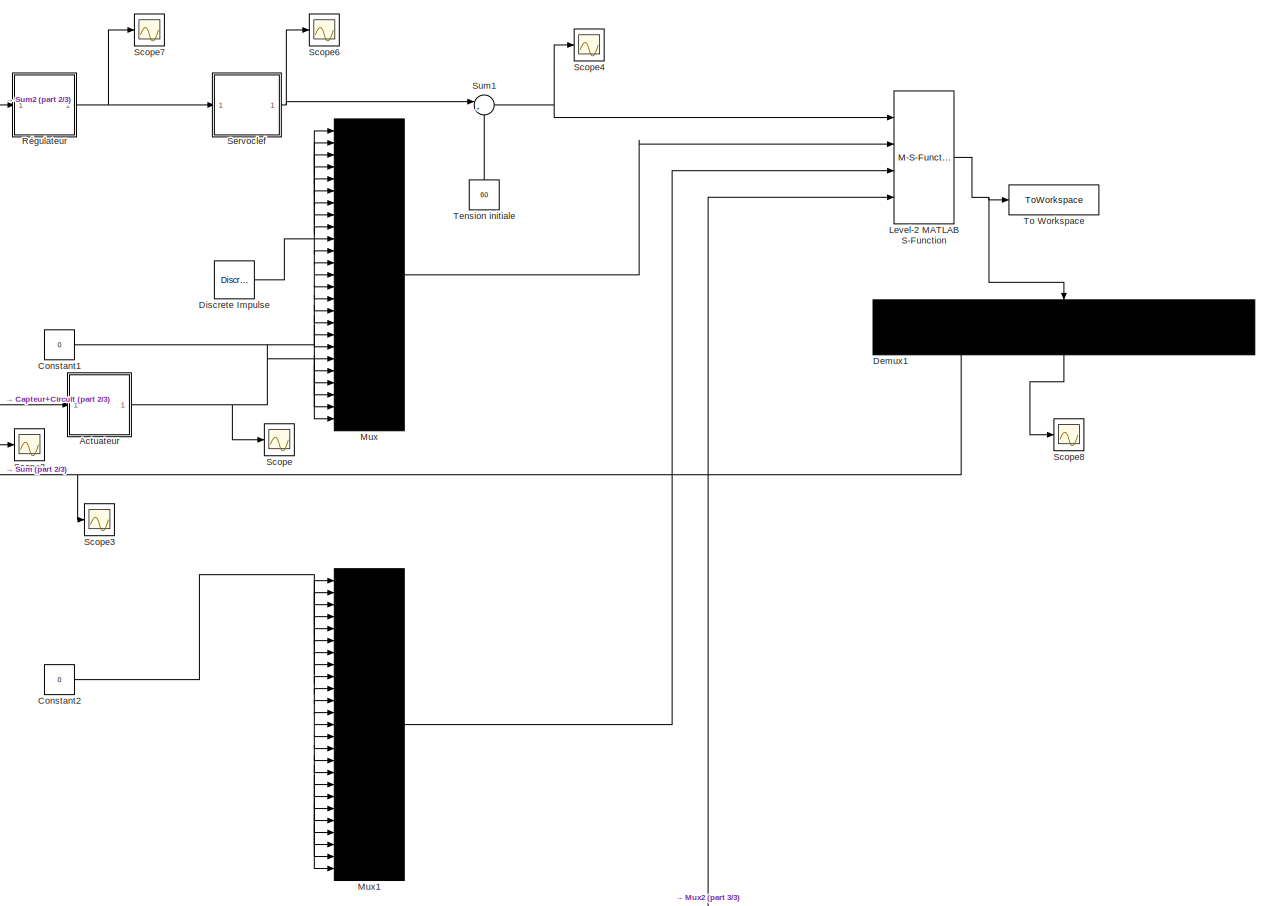
[diagram: root canvas - part 1/3, full width, middle band]
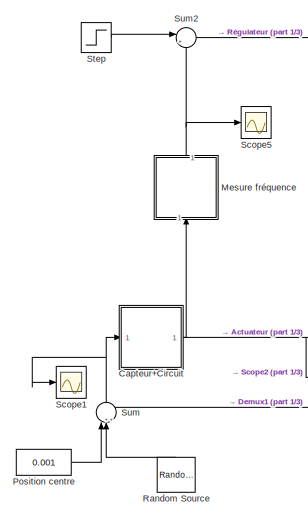
[diagram: root canvas - part 2/3, top left region]
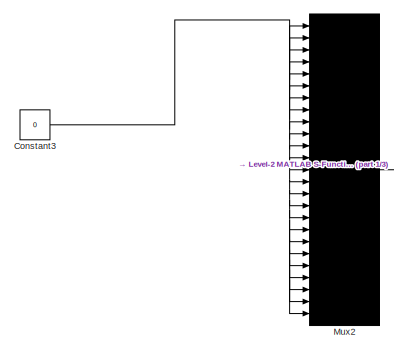
[diagram: root canvas - part 3/3, bottom center region]
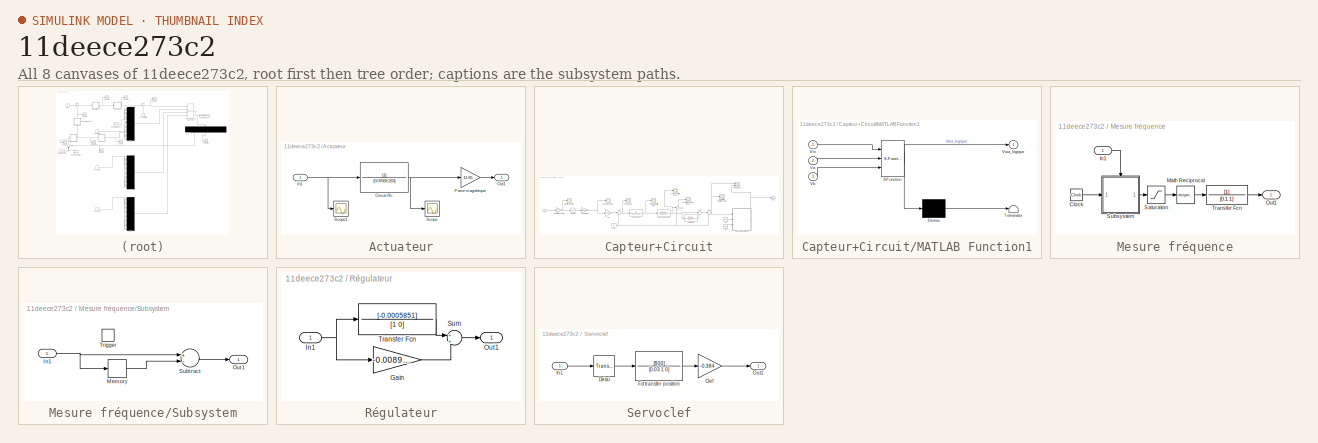
[diagram: thumbnail index - all 8 canvases of the model, root first then tree order]
MODEL slx_11deece273c2
KIND model
CONFIG AbsTol = auto
CONFIG EnableMultiTasking = off
CONFIG FixedStep = auto
CONFIG MaxStep = auto
CONFIG MinStep = auto
CONFIG RelTol = 1e-3
CONFIG SampleTimeConstraint = Unconstrained
CONFIG Solver = VariableStepAuto
CONFIG SolverName = VariableStepAuto
CONFIG StartTime = 0.0
CONFIG StopTime = 5
BLOCK [SubSystem] Actuateur
  Ports = [1, 1]
  RequestExecContextInheritance = off
BLOCK [TransferFcn] Actuateur/Circuit RL
  Denominator = [0.07668 263]
BLOCK [Gain] Actuateur/Force magnétique
  Gain = 11.65
  OutDataTypeStr = Inherit: Inherit via internal rule
  ParamDataTypeStr = Inherit: Inherit via internal rule
  SaturateOnIntegerOverflow = off
BLOCK [Inport] Actuateur/In1
  IconDisplay = Port number
BLOCK [Outport] Actuateur/Out1
  IconDisplay = Port number
BLOCK [Scope] Actuateur/Scope
  Floating = off
  NumInputPorts = 1
  Ports = [1]
  ScopeSpecificationString = Simulink.scopes.TimeScopeBlockCfg('CurrentConfiguration', extmgr.ConfigurationSet(extmgr.Configuration('Core','General UI',true),extmgr.Configuration('Core','Source UI',true),extmgr.Configuration('Sources','WiredSimulink',true),extmgr.Configuration('Visuals','Time Domain',true,'SerializedDisplays',{struct('MinYLimReal','-0.00492','MaxYLimReal','0.02151','YLabelReal','','MinYLimMag','0.00000','MaxY...<+1405ch>
BLOCK [Scope] Actuateur/Scope1
  Floating = off
  NumInputPorts = 1
  Ports = [1]
  ScopeSpecificationString = Simulink.scopes.TimeScopeBlockCfg('CurrentConfiguration', extmgr.ConfigurationSet(extmgr.Configuration('Core','General UI',true),extmgr.Configuration('Core','Source UI',true),extmgr.Configuration('Sources','WiredSimulink',true,'DataLoggingVariableName','ScopeData1'),extmgr.Configuration('Visuals','Time Domain',true,'SerializedDisplays',{struct('MinYLimReal','-6.25','MaxYLimReal','6.25','YLabelReal...<+1419ch>
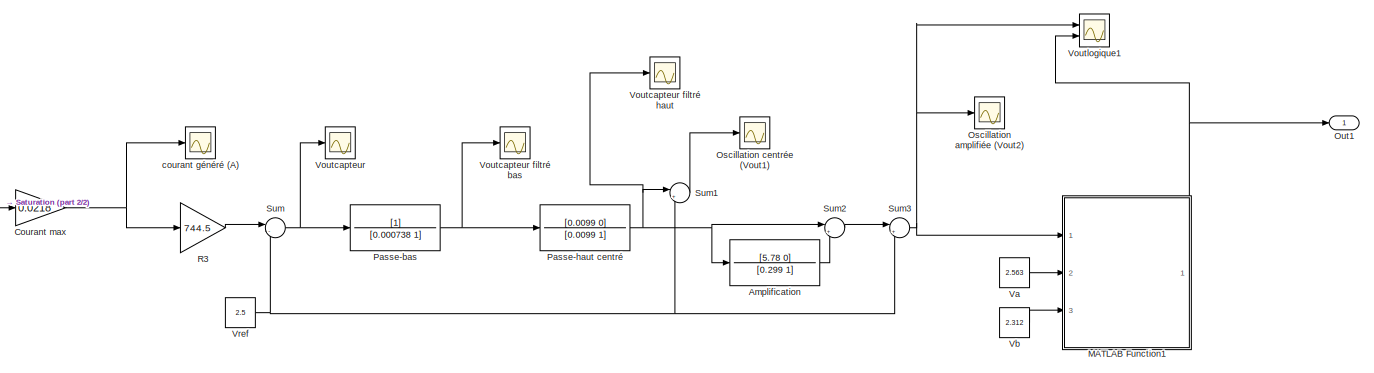
[diagram: Capteur+Circuit - part 1/2, most of the canvas]
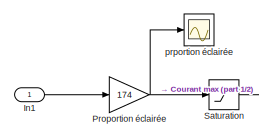
[diagram: Capteur+Circuit - part 2/2, middle left region]
BLOCK [SubSystem] Capteur+Circuit
  Ports = [1, 1]
  RequestExecContextInheritance = off
BLOCK [TransferFcn] Capteur+Circuit/Amplification 
  Denominator = [0.299 1]
  Numerator = [5.78 0]
BLOCK [Gain] Capteur+Circuit/Courant max
  Gain = 0.0218
  OutDataTypeStr = Inherit: Inherit via internal rule
  ParamDataTypeStr = Inherit: Inherit via internal rule
  SaturateOnIntegerOverflow = off
BLOCK [Inport] Capteur+Circuit/In1
  IconDisplay = Port number
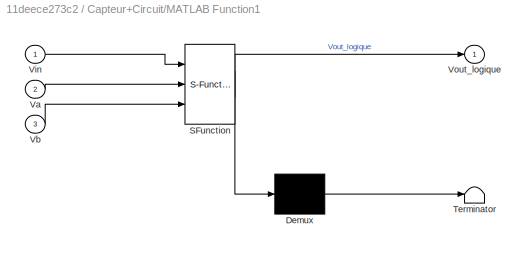
BLOCK [SubSystem] Capteur+Circuit/MATLAB Function1
  ErrorFcn = Stateflow.Translate.translate
  PermitHierarchicalResolution = ExplicitOnly
  Ports = [3, 1]
  RequestExecContextInheritance = off
  SFBlockType = MATLAB Function
  TreatAsAtomicUnit = on
BLOCK [Demux] Capteur+Circuit/MATLAB Function1/ Demux 
  Outputs = 1
  Ports = [1, 1]
BLOCK [S-Function] Capteur+Circuit/MATLAB Function1/ SFunction 
  EnableBusSupport = on
  FunctionName = sf_sfun
  PortCounts = [3 2]
  Ports = [3, 2]
  SFcnIsStateOwnerBlock = off
  SFunctionDeploymentMode = off
  Tag = Stateflow S-Function 1
BLOCK [Terminator] Capteur+Circuit/MATLAB Function1/ Terminator 
BLOCK [Inport] Capteur+Circuit/MATLAB Function1/Va
  IconDisplay = Port number
  Port = 2
BLOCK [Inport] Capteur+Circuit/MATLAB Function1/Vb
  IconDisplay = Port number
  Port = 3
BLOCK [Inport] Capteur+Circuit/MATLAB Function1/Vin
  IconDisplay = Port number
BLOCK [Outport] Capteur+Circuit/MATLAB Function1/Vout_logique
  IconDisplay = Port number
BLOCK [Scope] Capteur+Circuit/Oscillation amplifiée (Vout2) 
  Floating = off
  NumInputPorts = 1
  Ports = [1]
  ScopeSpecificationString = Simulink.scopes.TimeScopeBlockCfg('CurrentConfiguration', extmgr.ConfigurationSet(extmgr.Configuration('Core','General UI',true),extmgr.Configuration('Core','Source UI',true),extmgr.Configuration('Sources','WiredSimulink',true,'DataLoggingVariableName','ScopeData4'),extmgr.Configuration('Visuals','Time Domain',true,'SerializedDisplays',{struct('MinYLimReal','-106.51735','MaxYLimReal','114.18035','...<+1503ch>
BLOCK [Scope] Capteur+Circuit/Oscillation centrée (Vout1)
  Floating = off
  NumInputPorts = 1
  Ports = [1]
  ScopeSpecificationString = Simulink.scopes.TimeScopeBlockCfg('CurrentConfiguration', extmgr.ConfigurationSet(extmgr.Configuration('Core','General UI',true),extmgr.Configuration('Core','Source UI',true),extmgr.Configuration('Sources','WiredSimulink',true,'DataLoggingVariableName','ScopeData3'),extmgr.Configuration('Visuals','Time Domain',true,'SerializedDisplays',{struct('MinYLimReal','1.75493','MaxYLimReal','4.03396','YLabe...<+1432ch>
BLOCK [Outport] Capteur+Circuit/Out1
  IconDisplay = Port number
BLOCK [TransferFcn] Capteur+Circuit/Passe-bas
  Denominator = [0.000738 1]
BLOCK [TransferFcn] Capteur+Circuit/Passe-haut centré 
  Denominator = [0.0099 1]
  Numerator = [0.0099 0]
BLOCK [Gain] Capteur+Circuit/Proportion éclairée
  Gain = 174
  OutDataTypeStr = Inherit: Inherit via internal rule
  ParamDataTypeStr = Inherit: Inherit via internal rule
  SaturateOnIntegerOverflow = off
BLOCK [Gain] Capteur+Circuit/R3
  Gain = 744.5
  OutDataTypeStr = Inherit: Inherit via internal rule
  ParamDataTypeStr = Inherit: Inherit via internal rule
  SaturateOnIntegerOverflow = off
BLOCK [Saturate] Capteur+Circuit/Saturation
  InputPortMap = u0
  LowerLimit = 0
  Ports = [1, 1]
  UpperLimit = 0.497
BLOCK [Sum] Capteur+Circuit/Sum
  IconShape = round
  InputSameDT = off
  Inputs = |-+
  OutDataTypeStr = Inherit: Inherit via internal rule
  Ports = [2, 1]
  SaturateOnIntegerOverflow = off
BLOCK [Sum] Capteur+Circuit/Sum1
  IconShape = round
  InputSameDT = off
  Inputs = |++
  OutDataTypeStr = Inherit: Inherit via internal rule
  Ports = [2, 1]
  SaturateOnIntegerOverflow = off
BLOCK [Sum] Capteur+Circuit/Sum2
  IconShape = round
  InputSameDT = off
  Inputs = |++
  OutDataTypeStr = Inherit: Inherit via internal rule
  Ports = [2, 1]
  SaturateOnIntegerOverflow = off
BLOCK [Sum] Capteur+Circuit/Sum3
  IconShape = round
  InputSameDT = off
  Inputs = |++
  OutDataTypeStr = Inherit: Inherit via internal rule
  Ports = [2, 1]
  SaturateOnIntegerOverflow = off
BLOCK [Constant] Capteur+Circuit/Va 
  Value = 2.563
BLOCK [Constant] Capteur+Circuit/Vb
  Value = 2.312
BLOCK [Scope] Capteur+Circuit/Voutcapteur 
  Floating = off
  NumInputPorts = 1
  Ports = [1]
  ScopeSpecificationString = Simulink.scopes.TimeScopeBlockCfg('CurrentConfiguration', extmgr.ConfigurationSet(extmgr.Configuration('Core','General UI',true),extmgr.Configuration('Core','Source UI',true),extmgr.Configuration('Sources','WiredSimulink',true,'DataLoggingVariableName','ScopeData2'),extmgr.Configuration('Visuals','Time Domain',true,'SerializedDisplays',{struct('MinYLimReal','1.59253','MaxYLimReal','2.60083','YLabe...<+1486ch>
BLOCK [Scope] Capteur+Circuit/Voutcapteur filtré bas
  Floating = off
  NumInputPorts = 1
  Ports = [1]
  ScopeSpecificationString = Simulink.scopes.TimeScopeBlockCfg('CurrentConfiguration', extmgr.ConfigurationSet(extmgr.Configuration('Core','General UI',true),extmgr.Configuration('Core','Source UI',true),extmgr.Configuration('Sources','WiredSimulink',true,'DataLoggingVariableName','ScopeData1'),extmgr.Configuration('Visuals','Time Domain',true,'SerializedDisplays',{struct('MinYLimReal','-0.30667','MaxYLimReal','2.76003','YLab...<+1469ch>
BLOCK [Scope] Capteur+Circuit/Voutcapteur filtré haut
  Floating = off
  NumInputPorts = 1
  Ports = [1]
  ScopeSpecificationString = Simulink.scopes.TimeScopeBlockCfg('CurrentConfiguration', extmgr.ConfigurationSet(extmgr.Configuration('Core','General UI',true),extmgr.Configuration('Core','Source UI',true),extmgr.Configuration('Sources','WiredSimulink',true,'DataLoggingVariableName','ScopeData2'),extmgr.Configuration('Visuals','Time Domain',true,'SerializedDisplays',{struct('MinYLimReal','-0.0776','MaxYLimReal','0.09565','YLabe...<+1445ch>
BLOCK [Scope] Capteur+Circuit/Voutlogique1
  Floating = off
  NumInputPorts = 2
  Ports = [2]
  ScopeSpecificationString = Simulink.scopes.TimeScopeBlockCfg('CurrentConfiguration', extmgr.ConfigurationSet(extmgr.Configuration('Core','General UI',true),extmgr.Configuration('Core','Source UI',true),extmgr.Configuration('Sources','WiredSimulink',true,'DataLoggingVariableName','ScopeData6'),extmgr.Configuration('Visuals','Time Domain',true,'SerializedDisplays',{struct('MinYLimReal','-87.77017','MaxYLimReal','15.3078','YLa...<+1823ch>
BLOCK [Constant] Capteur+Circuit/Vref 
  Value = 2.5
BLOCK [Scope] Capteur+Circuit/courant généré (A) 
  Floating = off
  NumInputPorts = 1
  Ports = [1]
  ScopeSpecificationString = Simulink.scopes.TimeScopeBlockCfg('CurrentConfiguration', extmgr.ConfigurationSet(extmgr.Configuration('Core','General UI',true),extmgr.Configuration('Core','Source UI',true),extmgr.Configuration('Sources','WiredSimulink',true),extmgr.Configuration('Visuals','Time Domain',true,'SerializedDisplays',{struct('MinYLimReal','-0.01354','MaxYLimReal','0.12189','YLabelReal','','MinYLimMag','0.00000','MaxY...<+1430ch>
BLOCK [Scope] Capteur+Circuit/prportion éclairée
  Floating = off
  NumInputPorts = 1
  Ports = [1]
  ScopeSpecificationString = Simulink.scopes.TimeScopeBlockCfg('CurrentConfiguration', extmgr.ConfigurationSet(extmgr.Configuration('Core','General UI',true),extmgr.Configuration('Core','Source UI',true),extmgr.Configuration('Sources','WiredSimulink',true,'DataLoggingVariableName','ScopeData1'),extmgr.Configuration('Visuals','Time Domain',true,'SerializedDisplays',{struct('MinYLimReal','0.01861','MaxYLimReal','0.51432','YLabe...<+1773ch>
BLOCK [Constant] Constant1
  Value = 0
BLOCK [Constant] Constant2
  Value = 0
BLOCK [Constant] Constant3
  Value = 0
BLOCK [Demux] Demux1
  DisplayOption = bar
  Outputs = 25
  Ports = [1, 25]
BLOCK [Reference] Discrete Impulse  REF=dspsrcs4/Discrete 
Impulse
  Ports = [0, 1]
  SourceBlock = dspsrcs4/Discrete \nImpulse
  SourceProductBaseCode = DS
  SourceProductName = DSP System Toolbox
  SourceType = Discrete Impulse
BLOCK [M-S-Function] Level-2 MATLAB S-Function
  FunctionName = corde2
  Parameters = 0.00325, 0.44, 0.0326, 25
  Ports = [4, 1]
BLOCK [SubSystem] Mesure fréquence
  Ports = [1, 1]
  RequestExecContextInheritance = off
BLOCK [Clock] Mesure fréquence/Clock
BLOCK [Inport] Mesure fréquence/In1
  IconDisplay = Port number
BLOCK [Math] Mesure fréquence/Math Reciprocal
  Operator = reciprocal
  Ports = [1, 1]
BLOCK [Outport] Mesure fréquence/Out1
  IconDisplay = Port number
BLOCK [Saturate] Mesure fréquence/Saturation
  InputPortMap = u0
  LowerLimit = 0.001
  Ports = [1, 1]
  UpperLimit = 1
BLOCK [SubSystem] Mesure fréquence/Subsystem
  Ports = [1, 1, 0, 1]
  RequestExecContextInheritance = off
BLOCK [Inport] Mesure fréquence/Subsystem/In1
  IconDisplay = Port number
BLOCK [Memory] Mesure fréquence/Subsystem/Memory
  InheritSampleTime = on
BLOCK [Outport] Mesure fréquence/Subsystem/Out1
  IconDisplay = Port number
BLOCK [Sum] Mesure fréquence/Subsystem/Subtract
  InputSameDT = off
  Inputs = +-
  OutDataTypeStr = Inherit: Inherit via internal rule
  Ports = [2, 1]
  SaturateOnIntegerOverflow = off
BLOCK [TriggerPort] Mesure fréquence/Subsystem/Trigger
  PortDimensions = 1
  Ports = []
  StatesWhenEnabling = held
  VariantControl = Variant
BLOCK [TransferFcn] Mesure fréquence/Transfer Fcn
  Denominator = [0.1 1]
BLOCK [Mux] Mux
  DisplayOption = bar
  Inputs = 25
  Ports = [25, 1]
BLOCK [Mux] Mux1
  DisplayOption = bar
  Inputs = 25
  Ports = [25, 1]
BLOCK [Mux] Mux2
  DisplayOption = bar
  Inputs = 25
  Ports = [25, 1]
BLOCK [Constant] Position centre
  Value = 0.001
BLOCK [Reference] Random Source  REF=dspsrcs4/Random
Source
  Commented = on
  Ports = [0, 1]
  SourceBlock = dspsrcs4/Random\nSource
  SourceProductBaseCode = DS
  SourceProductName = DSP System Toolbox
  SourceType = Random Source
  UserDataPersistent = on
BLOCK [SubSystem] Régulateur
  Ports = [1, 1]
  RequestExecContextInheritance = off
BLOCK [Gain] Régulateur/Gain
  Gain = -0.008936
  OutDataTypeStr = Inherit: Inherit via internal rule
  ParamDataTypeStr = Inherit: Inherit via internal rule
  SaturateOnIntegerOverflow = off
BLOCK [Inport] Régulateur/In1
  IconDisplay = Port number
BLOCK [Outport] Régulateur/Out1
  IconDisplay = Port number
BLOCK [Sum] Régulateur/Sum
  IconShape = round
  InputSameDT = off
  Inputs = +|+
  OutDataTypeStr = Inherit: Inherit via internal rule
  Ports = [2, 1]
  SaturateOnIntegerOverflow = off
BLOCK [TransferFcn] Régulateur/Transfer Fcn
  Denominator = [1 0]
  Numerator = [-0.0005851]
BLOCK [Scope] Scope
  Floating = off
  NumInputPorts = 1
  Ports = [1]
  ScopeSpecificationString = Simulink.scopes.TimeScopeBlockCfg('CurrentConfiguration', extmgr.ConfigurationSet(extmgr.Configuration('Core','General UI',true),extmgr.Configuration('Core','Source UI',true),extmgr.Configuration('Sources','WiredSimulink',true,'DataLoggingVariableName','ScopeData1'),extmgr.Configuration('Visuals','Time Domain',true,'SerializedDisplays',{struct('MinYLimReal','-0.02769','MaxYLimReal','0.24917','YLab...<+1586ch>
BLOCK [Scope] Scope1
  Floating = off
  NumInputPorts = 1
  Ports = [1]
  ScopeSpecificationString = Simulink.scopes.TimeScopeBlockCfg('CurrentConfiguration', extmgr.ConfigurationSet(extmgr.Configuration('Core','General UI',true),extmgr.Configuration('Core','Source UI',true),extmgr.Configuration('Sources','WiredSimulink',true,'DataLoggingVariableName','ScopeData1'),extmgr.Configuration('Visuals','Time Domain',true,'SerializedDisplays',{struct('MinYLimReal','0.00014','MaxYLimReal','0.00386','YLabe...<+1457ch>
BLOCK [Scope] Scope2
  Floating = off
  NumInputPorts = 1
  Ports = [1]
  ScopeSpecificationString = Simulink.scopes.TimeScopeBlockCfg('CurrentConfiguration', extmgr.ConfigurationSet(extmgr.Configuration('Core','General UI',true),extmgr.Configuration('Core','Source UI',true),extmgr.Configuration('Sources','WiredSimulink',true,'DataLoggingVariableName','ScopeData2'),extmgr.Configuration('Visuals','Time Domain',true,'SerializedDisplays',{struct('MinYLimReal','-0.625','MaxYLimReal','5.625','YLabelRe...<+1461ch>
BLOCK [Scope] Scope3
  Floating = off
  NumInputPorts = 1
  Ports = [1]
  ScopeSpecificationString = Simulink.scopes.TimeScopeBlockCfg('CurrentConfiguration', extmgr.ConfigurationSet(extmgr.Configuration('Core','General UI',true),extmgr.Configuration('Core','Source UI',true),extmgr.Configuration('Sources','WiredSimulink',true,'DataLoggingVariableName','ScopeData3'),extmgr.Configuration('Visuals','Time Domain',true,'SerializedDisplays',{struct('MinYLimReal','-0.00089','MaxYLimReal','0.00196','YLab...<+1478ch>
BLOCK [Scope] Scope4
  Floating = off
  NumInputPorts = 1
  Ports = [1]
  ScopeSpecificationString = Simulink.scopes.TimeScopeBlockCfg('CurrentConfiguration', extmgr.ConfigurationSet(extmgr.Configuration('Core','General UI',true),extmgr.Configuration('Core','Source UI',true),extmgr.Configuration('Sources','WiredSimulink',true,'DataLoggingVariableName','ScopeData4'),extmgr.Configuration('Visuals','Time Domain',true,'SerializedDisplays',{struct('MinYLimReal','-75.4742','MaxYLimReal','80.51076','YLa...<+1583ch>
BLOCK [Scope] Scope5
  Floating = off
  NumInputPorts = 1
  Ports = [1]
  ScopeSpecificationString = Simulink.scopes.TimeScopeBlockCfg('CurrentConfiguration', extmgr.ConfigurationSet(extmgr.Configuration('Core','General UI',true),extmgr.Configuration('Core','Source UI',true),extmgr.Configuration('Sources','WiredSimulink',true,'DataLoggingVariableName','ScopeData5'),extmgr.Configuration('Visuals','Time Domain',true,'SerializedDisplays',{struct('MinYLimReal','-62.85415','MaxYLimReal','565.68738','Y...<+1752ch>
BLOCK [Scope] Scope6
  Floating = off
  NumInputPorts = 1
  Ports = [1]
  ScopeSpecificationString = Simulink.scopes.TimeScopeBlockCfg('CurrentConfiguration', extmgr.ConfigurationSet(extmgr.Configuration('Core','General UI',true),extmgr.Configuration('Core','Source UI',true),extmgr.Configuration('Sources','WiredSimulink',true,'DataLoggingVariableName','ScopeData8'),extmgr.Configuration('Visuals','Time Domain',true,'SerializedDisplays',{struct('MinYLimReal','-21.0364','MaxYLimReal','189.32763','YL...<+1591ch>
BLOCK [Scope] Scope7
  Floating = off
  NumInputPorts = 1
  Ports = [1]
  ScopeSpecificationString = Simulink.scopes.TimeScopeBlockCfg('CurrentConfiguration', extmgr.ConfigurationSet(extmgr.Configuration('Core','General UI',true),extmgr.Configuration('Core','Source UI',true),extmgr.Configuration('Sources','WiredSimulink',true,'DataLoggingVariableName','ScopeData9'),extmgr.Configuration('Visuals','Time Domain',true,'SerializedDisplays',{struct('MinYLimReal','-2.55308','MaxYLimReal','1.7997','YLabe...<+1464ch>
BLOCK [Scope] Scope8
  Floating = off
  NumInputPorts = 1
  Ports = [1]
  ScopeSpecificationString = Simulink.scopes.TimeScopeBlockCfg('CurrentConfiguration', extmgr.ConfigurationSet(extmgr.Configuration('Core','General UI',true),extmgr.Configuration('Core','Source UI',true),extmgr.Configuration('Sources','WiredSimulink',true,'DataLoggingVariableName','ScopeData2'),extmgr.Configuration('Visuals','Time Domain',true,'SerializedDisplays',{struct('MinYLimReal','-0.00093','MaxYLimReal','0.00292','YLab...<+1479ch>
BLOCK [SubSystem] Servoclef
  Ports = [1, 1]
  RequestExecContextInheritance = off
BLOCK [Gain] Servoclef/Clef
  Gain = -0.384
  OutDataTypeStr = Inherit: Inherit via internal rule
  ParamDataTypeStr = Inherit: Inherit via internal rule
  SaturateOnIntegerOverflow = off
BLOCK [TransportDelay] Servoclef/Délai
  DelayTime = 0.01
  Ports = [1, 1]
BLOCK [TransferFcn] Servoclef/Fct transfer position
  Denominator = [0.03 1 0]
  Numerator = [800]
BLOCK [Inport] Servoclef/In1
  IconDisplay = Port number
BLOCK [Outport] Servoclef/Out1
  IconDisplay = Port number
BLOCK [Step] Step
  After = 220
  Before = 200
  SampleTime = 0
  Time = 3
BLOCK [Sum] Sum
  IconShape = round
  InputSameDT = off
  Inputs = |+++
  OutDataTypeStr = Inherit: Inherit via internal rule
  Ports = [3, 1]
  SaturateOnIntegerOverflow = off
BLOCK [Sum] Sum1
  IconShape = round
  InputSameDT = off
  Inputs = |++
  OutDataTypeStr = Inherit: Inherit via internal rule
  Ports = [2, 1]
  SaturateOnIntegerOverflow = off
BLOCK [Sum] Sum2
  IconShape = round
  InputSameDT = off
  Inputs = |+-
  OutDataTypeStr = Inherit: Inherit via internal rule
  Ports = [2, 1]
  SaturateOnIntegerOverflow = off
BLOCK [Constant] Tension initiale
  Value = 60
BLOCK [ToWorkspace] To Workspace
  FixptAsFi = on
  MaxDataPoints = inf
  Ports = [1]
  SampleTime = 0.0005
  SaveFormat = Timeseries
  VariableName = corde_mesure
NET Actuateur/Circuit RL:1 -> Actuateur/Force magnétique:1, Actuateur/Scope:1
LINE Actuateur/Force magnétique:1 -> Actuateur/Out1:1
NET Actuateur/In1:1 -> Actuateur/Circuit RL:1, Actuateur/Scope1:1
NET Actuateur:1 -> Mux:20, Scope:1
LINE Capteur+Circuit/Amplification :1 -> Capteur+Circuit/Sum2:2
NET Capteur+Circuit/Courant max:1 -> Capteur+Circuit/R3:1, Capteur+Circuit/courant généré (A) :1
LINE Capteur+Circuit/In1:1 -> Capteur+Circuit/Proportion éclairée:1
NET Capteur+Circuit/MATLAB Function1:1 -> Capteur+Circuit/Out1:1, Capteur+Circuit/Voutlogique1:2
NET Capteur+Circuit/Passe-bas:1 -> Capteur+Circuit/Passe-haut centré :1, Capteur+Circuit/Voutcapteur filtré bas:1
NET Capteur+Circuit/Passe-haut centré :1 -> Capteur+Circuit/Amplification :1, Capteur+Circuit/Sum1:1, Capteur+Circuit/Sum2:1, Capteur+Circuit/Voutcapteur filtré haut:1
NET Capteur+Circuit/Proportion éclairée:1 -> Capteur+Circuit/Saturation:1, Capteur+Circuit/prportion éclairée:1
LINE Capteur+Circuit/R3:1 -> Capteur+Circuit/Sum:1
LINE Capteur+Circuit/Saturation:1 -> Capteur+Circuit/Courant max:1
LINE Capteur+Circuit/Sum1:1 -> Capteur+Circuit/Oscillation centrée (Vout1):1
LINE Capteur+Circuit/Sum2:1 -> Capteur+Circuit/Sum3:1
NET Capteur+Circuit/Sum3:1 -> Capteur+Circuit/MATLAB Function1:1, Capteur+Circuit/Oscillation amplifiée (Vout2) :1, Capteur+Circuit/Voutlogique1:1
NET Capteur+Circuit/Sum:1 -> Capteur+Circuit/Passe-bas:1, Capteur+Circuit/Voutcapteur :1
LINE Capteur+Circuit/Va :1 -> Capteur+Circuit/MATLAB Function1:2
LINE Capteur+Circuit/Vb:1 -> Capteur+Circuit/MATLAB Function1:3
NET Capteur+Circuit/Vref :1 -> Capteur+Circuit/Sum1:2, Capteur+Circuit/Sum3:2, Capteur+Circuit/Sum:2
NET Capteur+Circuit:1 -> Actuateur:1, Mesure fréquence:1, Scope2:1
NET Constant1:1 -> Mux:1, Mux:11, Mux:12, Mux:13, Mux:14, Mux:15, Mux:16, Mux:17, Mux:18, Mux:19, Mux:2, Mux:21, Mux:22, Mux:23, Mux:24, Mux:25, Mux:3, Mux:4, Mux:5, Mux:6, Mux:7, Mux:8, Mux:9
NET Constant2:1 -> Mux1:1, Mux1:10, Mux1:11, Mux1:12, Mux1:13, Mux1:14, Mux1:15, Mux1:16, Mux1:17, Mux1:18, Mux1:19, Mux1:2, Mux1:20, Mux1:21, Mux1:22, Mux1:23, Mux1:24, Mux1:25, Mux1:3, Mux1:4, Mux1:5, Mux1:6, Mux1:7, Mux1:8, Mux1:9
NET Constant3:1 -> Mux2:1, Mux2:10, Mux2:11, Mux2:12, Mux2:13, Mux2:14, Mux2:15, Mux2:16, Mux2:17, Mux2:18, Mux2:19, Mux2:2, Mux2:20, Mux2:21, Mux2:22, Mux2:23, Mux2:24, Mux2:25, Mux2:3, Mux2:4, Mux2:5, Mux2:6, Mux2:7, Mux2:8, Mux2:9
LINE Demux1:13 -> Scope8:1
NET Demux1:6 -> Scope3:1, Sum:3
LINE Discrete Impulse:1 -> Mux:10
NET Level-2 MATLAB S-Function:1 -> Demux1:1, To Workspace:1
LINE Mesure fréquence/Clock:1 -> Mesure fréquence/Subsystem:1
LINE Mesure fréquence/In1:1 -> Mesure fréquence/Subsystem:trigger
LINE Mesure fréquence/Math Reciprocal:1 -> Mesure fréquence/Transfer Fcn:1
LINE Mesure fréquence/Saturation:1 -> Mesure fréquence/Math Reciprocal:1
NET Mesure fréquence/Subsystem/In1:1 -> Mesure fréquence/Subsystem/Memory:1, Mesure fréquence/Subsystem/Subtract:1
LINE Mesure fréquence/Subsystem/Memory:1 -> Mesure fréquence/Subsystem/Subtract:2
LINE Mesure fréquence/Subsystem/Subtract:1 -> Mesure fréquence/Subsystem/Out1:1
LINE Mesure fréquence/Subsystem:1 -> Mesure fréquence/Saturation:1
LINE Mesure fréquence/Transfer Fcn:1 -> Mesure fréquence/Out1:1
NET Mesure fréquence:1 -> Scope5:1, Sum2:2
LINE Mux1:1 -> Level-2 MATLAB S-Function:3
LINE Mux2:1 -> Level-2 MATLAB S-Function:4
LINE Mux:1 -> Level-2 MATLAB S-Function:2
LINE Position centre:1 -> Sum:1
LINE Random Source:1 -> Sum:2
LINE Régulateur/Gain:1 -> Régulateur/Sum:2
NET Régulateur/In1:1 -> Régulateur/Gain:1, Régulateur/Transfer Fcn:1
LINE Régulateur/Sum:1 -> Régulateur/Out1:1
LINE Régulateur/Transfer Fcn:1 -> Régulateur/Sum:1
NET Régulateur:1 -> Scope7:1, Servoclef:1
LINE Servoclef/Clef:1 -> Servoclef/Out1:1
LINE Servoclef/Délai:1 -> Servoclef/Fct transfer position:1
LINE Servoclef/Fct transfer position:1 -> Servoclef/Clef:1
LINE Servoclef/In1:1 -> Servoclef/Délai:1
NET Servoclef:1 -> Scope6:1, Sum1:1
LINE Step:1 -> Sum2:1
NET Sum1:1 -> Level-2 MATLAB S-Function:1, Scope4:1
LINE Sum2:1 -> Régulateur:1
NET Sum:1 -> Capteur+Circuit:1, Scope1:1
LINE Tension initiale:1 -> Sum1:2
note: NET lines group one-source signal fan-out (src -> all destinations, sorted); 1:1 wires keep LINE
CHART Capteur+Circuit/MATLAB Function1 states=1 transitions=1
  STATE_LABEL 'eML_blk_kernel()'
  STATE_LABEL 'SCRIPT:\nfunction Vout_logique = fcn(Vin, Va, Vb)\n\nVout_logique = 0;\nif Vin > Va && Vout_logique == 5\n    Vout_logique = 0;\nend\nif Vin < Vb && Vout_logique == 0\n    Vout_logique = 5;\nend\nend\n \n'
